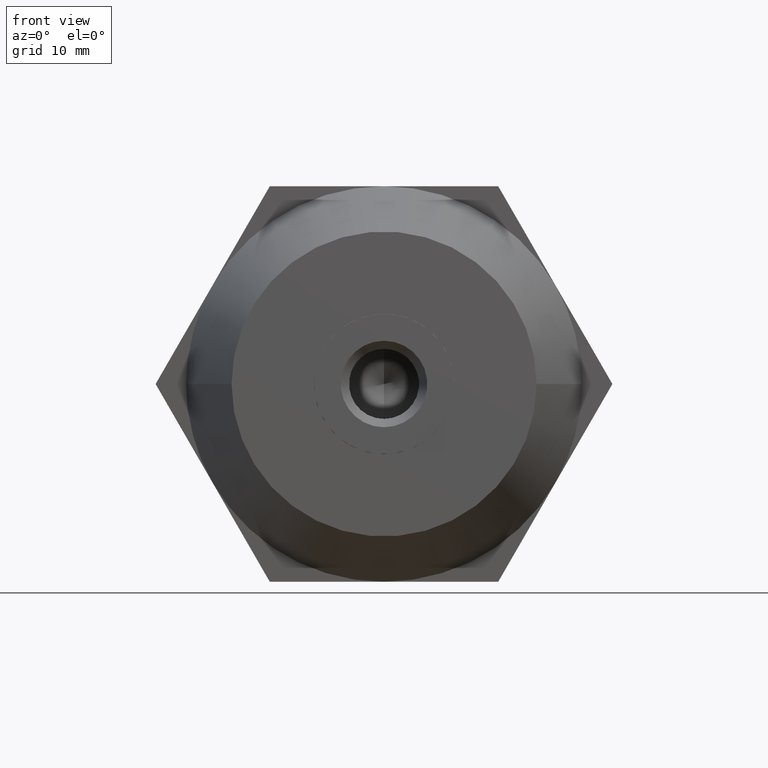
[diagram: clean part render]
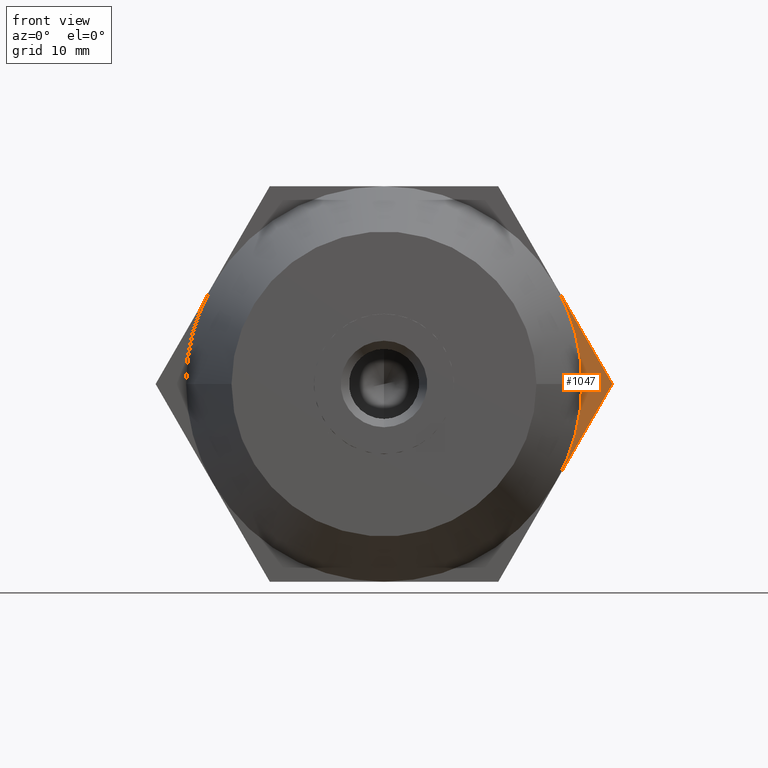
[diagram: same view with one face highlighted and labeled with its STEP entity id]
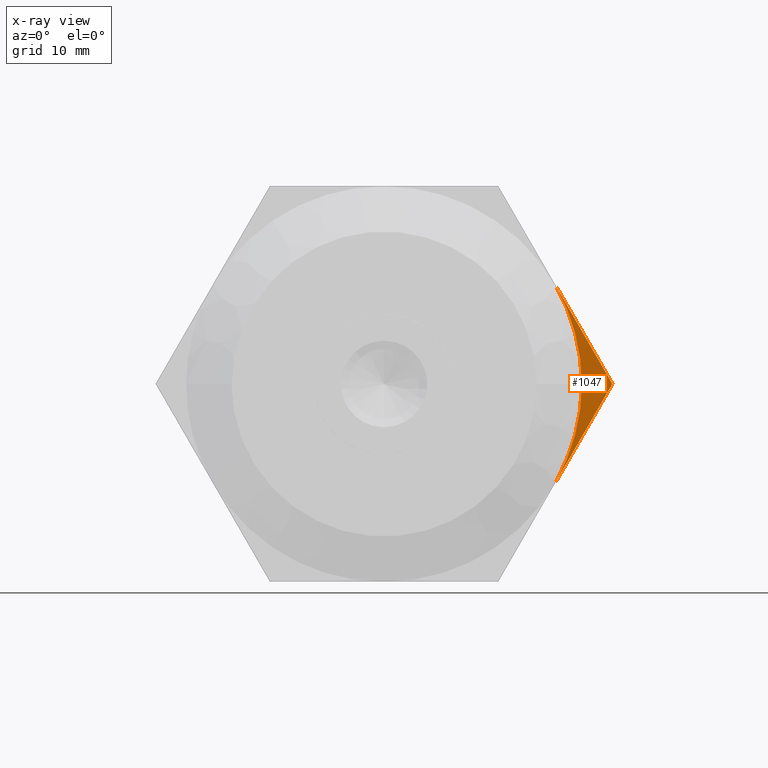
[diagram: x-ray of the same camera — body ghosted, the highlighted face saturated]
A machine part, front view. The second image highlights one B-rep face of the part: STEP entity #1047.
The next image is the same camera in x-ray: the body ghosted, the highlighted face saturated — about 0% of this face is hidden behind the body in this view.
In plain terms, the highlighted planar face has unit normal (0, 1, 0).
Its self-contained STEP definition (entity closure, byte-faithful):
#185 = EDGE_CURVE ( 'NONE', #1093, #1494, #3222, .T. ) ;
#206 = CARTESIAN_POINT ( 'NONE',  ( 27.71281292110205300, -5.000000000000000000, -1.141856323279441800E-014 ) ) ;
#246 = CARTESIAN_POINT ( 'NONE',  ( 20.78460969082655300, -5.000000000000000000, -12.00000000000000000 ) ) ;
#316 = DIRECTION ( 'NONE',  ( -0.4999999999999998900, 0.0000000000000000000, -0.8660254037844387100 ) ) ;
#529 = EDGE_CURVE ( 'NONE', #1502, #1735, #3660, .T. ) ;
#559 = CARTESIAN_POINT ( 'NONE',  ( 20.78460969082655300, -5.000000000000000000, 12.00000000000000000 ) ) ;
#750 = DIRECTION ( 'NONE',  ( 0.0000000000000000000, 0.0000000000000000000, 1.000000000000000000 ) ) ;
#796 = CARTESIAN_POINT ( 'NONE',  ( 0.0000000000000000000, -5.000000000000000000, 0.0000000000000000000 ) ) ;
#920 = VECTOR ( 'NONE', #316, 1000.000000000000000 ) ;
#1047 = ADVANCED_FACE ( 'NONE', ( #2153 ), #2231, .F. ) ;
#1093 = VERTEX_POINT ( 'NONE', #206 ) ;
#1256 = EDGE_CURVE ( 'NONE', #1735, #1494, #3310, .T. ) ;
#1356 = DIRECTION ( 'NONE',  ( 0.0000000000000000000, 0.0000000000000000000, 1.000000000000000000 ) ) ;
#1494 = VERTEX_POINT ( 'NONE', #246 ) ;
#1502 = VERTEX_POINT ( 'NONE', #559 ) ;
#1685 = DIRECTION ( 'NONE',  ( 0.0000000000000000000, 0.0000000000000000000, 1.000000000000000000 ) ) ;
#1690 = DIRECTION ( 'NONE',  ( 0.0000000000000000000, 1.000000000000000000, 0.0000000000000000000 ) ) ;
#1698 = CARTESIAN_POINT ( 'NONE',  ( 7.959741419701128200E-015, -5.000000000000000000, 6.060474499082429800E-016 ) ) ;
#1735 = VERTEX_POINT ( 'NONE', #3734 ) ;
#1951 = CARTESIAN_POINT ( 'NONE',  ( 7.959741419701128200E-015, -5.000000000000000000, 6.060474499082429800E-016 ) ) ;
#2001 = DIRECTION ( 'NONE',  ( 0.0000000000000000000, 1.000000000000000000, 0.0000000000000000000 ) ) ;
#2126 = CARTESIAN_POINT ( 'NONE',  ( 27.71281292110205300, -5.000000000000000000, -1.141856323279441800E-014 ) ) ;
#2153 = FACE_OUTER_BOUND ( 'NONE', #3797, .T. ) ;
#2231 = PLANE ( 'NONE',  #2234 ) ;
#2234 = AXIS2_PLACEMENT_3D ( 'NONE', #796, #2272, #1685 ) ;
#2257 = VECTOR ( 'NONE', #3754, 1000.000000000000000 ) ;
#2272 = DIRECTION ( 'NONE',  ( 0.0000000000000000000, 1.000000000000000000, 0.0000000000000000000 ) ) ;
#2358 = ORIENTED_EDGE ( 'NONE', *, *, #529, .T. ) ;
#2475 = AXIS2_PLACEMENT_3D ( 'NONE', #1951, #1690, #750 ) ;
#2478 = CARTESIAN_POINT ( 'NONE',  ( 13.85640646055101900, -5.000000000000000000, 24.00000000000000000 ) ) ;
#2777 = ORIENTED_EDGE ( 'NONE', *, *, #1256, .T. ) ;
#3114 = EDGE_CURVE ( 'NONE', #1502, #1093, #3907, .T. ) ;
#3222 = LINE ( 'NONE', #2126, #920 ) ;
#3310 = CIRCLE ( 'NONE', #3552, 24.00000000000000000 ) ;
#3321 = ORIENTED_EDGE ( 'NONE', *, *, #3114, .F. ) ;
#3552 = AXIS2_PLACEMENT_3D ( 'NONE', #1698, #2001, #1356 ) ;
#3660 = CIRCLE ( 'NONE', #2475, 24.00000000000000000 ) ;
#3734 = CARTESIAN_POINT ( 'NONE',  ( 24.00000000000000700, -5.000000000000000000, 2.939152317953647900E-015 ) ) ;
#3754 = DIRECTION ( 'NONE',  ( 0.4999999999999998900, 0.0000000000000000000, -0.8660254037844387100 ) ) ;
#3797 = EDGE_LOOP ( 'NONE', ( #3321, #2358, #2777, #3841 ) ) ;
#3841 = ORIENTED_EDGE ( 'NONE', *, *, #185, .F. ) ;
#3907 = LINE ( 'NONE', #2478, #2257 ) ;